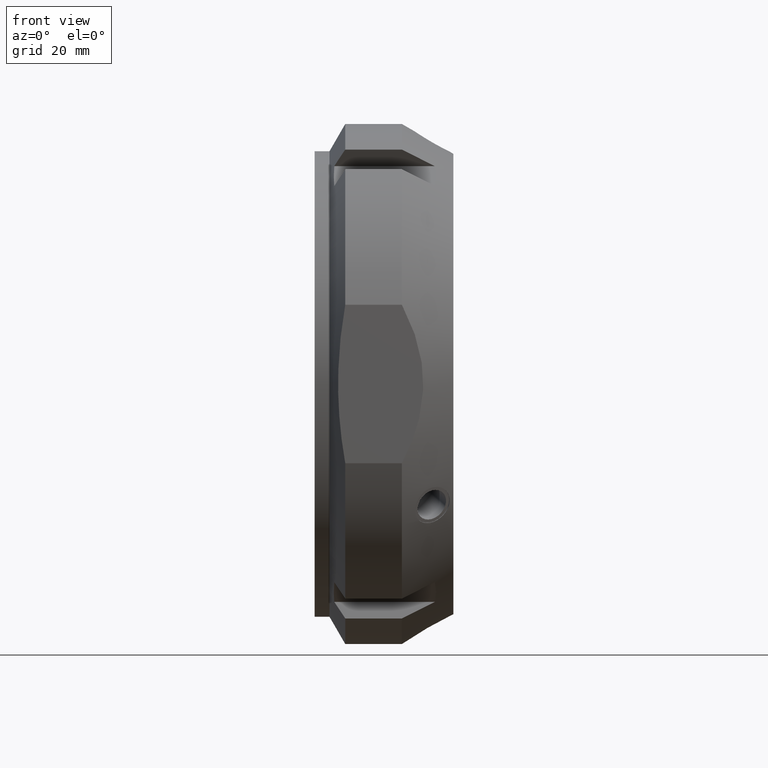
[diagram: clean part render]
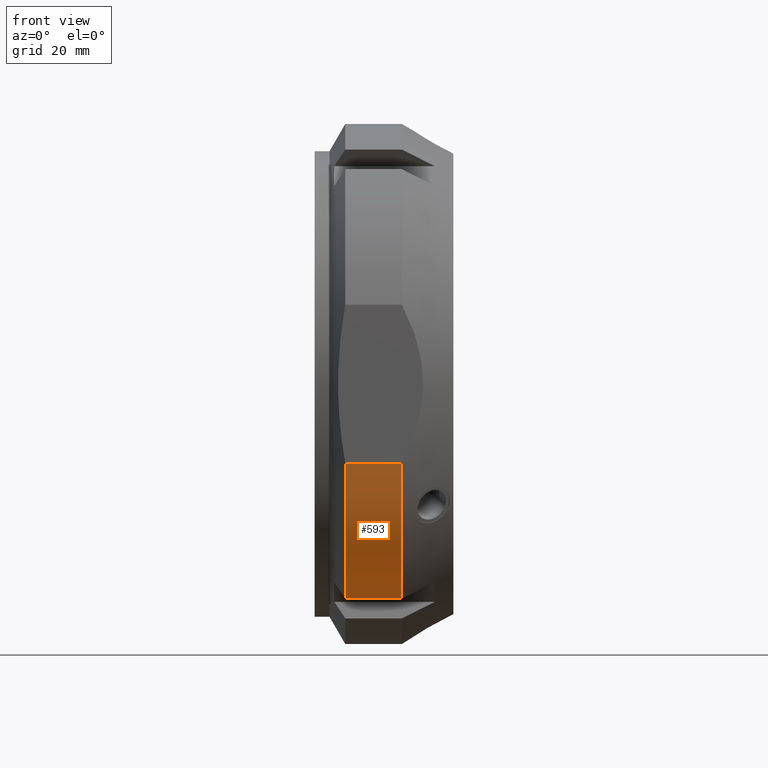
[diagram: same view with one face highlighted and labeled with its STEP entity id]
A machine part, front view. The second image highlights one B-rep face of the part: STEP entity #593.
In plain terms, the highlighted cylindrical surface (partial cylindrical patch) has radius 52.5 mm, axis along (1, 0, 0).
Its self-contained STEP definition (entity closure, byte-faithful):
#219=CARTESIAN_POINT('',(6.175426480542924,-29.637800245633279,-43.334175850014034));
#220=VERTEX_POINT('',#219);
#242=CARTESIAN_POINT('',(17.60769515458669,-29.637800245633287,-43.334175850014049));
#243=VERTEX_POINT('',#242);
#257=CARTESIAN_POINT('',(6.175426480542924,-29.637800245633279,-43.334175850014034));
#258=DIRECTION('',(1.0,0.0,0.0));
#259=VECTOR('',#258,11.432268674043765);
#260=LINE('',#257,#259);
#261=EDGE_CURVE('',#220,#243,#260,.T.);
#385=CARTESIAN_POINT('',(6.175426480542923,-50.000000000000028,-16.007810593582029));
#386=VERTEX_POINT('',#385);
#387=CARTESIAN_POINT('',(6.175426480542923,0.0,0.0));
#388=DIRECTION('',(1.0,0.0,0.0));
#389=DIRECTION('',(0.0,1.0,0.0));
#390=AXIS2_PLACEMENT_3D('',#387,#388,#389);
#391=CIRCLE('',#390,52.5);
#392=EDGE_CURVE('',#386,#220,#391,.T.);
#569=CARTESIAN_POINT('',(11.891560817564812,0.0,0.0));
#570=DIRECTION('',(1.0,0.0,0.0));
#571=DIRECTION('',(0.0,1.0,0.0));
#572=AXIS2_PLACEMENT_3D('',#569,#570,#571);
#573=CYLINDRICAL_SURFACE('',#572,52.5);
#574=ORIENTED_EDGE('',*,*,#261,.T.);
#575=CARTESIAN_POINT('',(17.6076951545867,-50.000000000000028,-16.007810593582029));
#576=VERTEX_POINT('',#575);
#577=CARTESIAN_POINT('',(17.6076951545867,0.0,0.0));
#578=DIRECTION('',(1.0,0.0,0.0));
#579=DIRECTION('',(0.0,1.0,0.0));
#580=AXIS2_PLACEMENT_3D('',#577,#578,#579);
#581=CIRCLE('',#580,52.5);
#582=EDGE_CURVE('',#576,#243,#581,.T.);
#583=ORIENTED_EDGE('',*,*,#582,.F.);
#584=CARTESIAN_POINT('',(17.6076951545867,-50.000000000000028,-16.007810593582029));
#585=DIRECTION('',(-1.0,0.0,0.0));
#586=VECTOR('',#585,11.432268674043778);
#587=LINE('',#584,#586);
#588=EDGE_CURVE('',#576,#386,#587,.T.);
#589=ORIENTED_EDGE('',*,*,#588,.T.);
#590=ORIENTED_EDGE('',*,*,#392,.T.);
#591=EDGE_LOOP('',(#574,#583,#589,#590));
#592=FACE_OUTER_BOUND('',#591,.T.);
#593=ADVANCED_FACE('',(#592),#573,.T.);